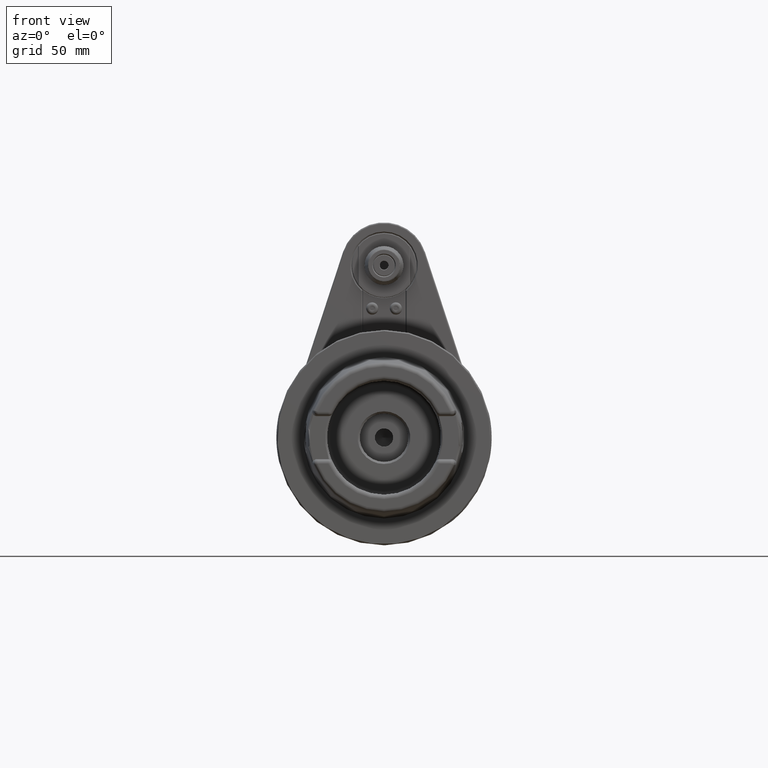
[diagram: clean part render]
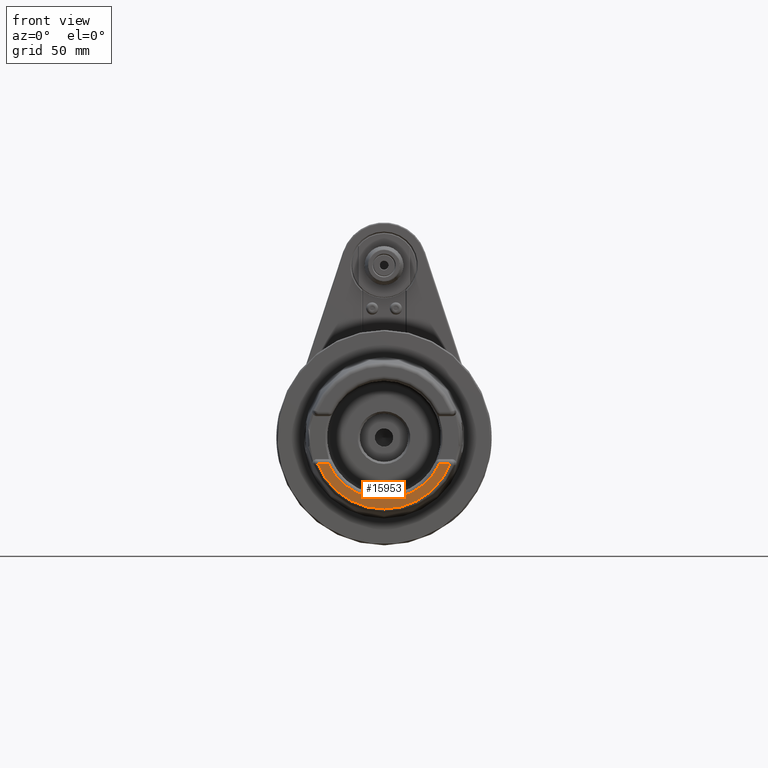
[diagram: same view with one face highlighted and labeled with its STEP entity id]
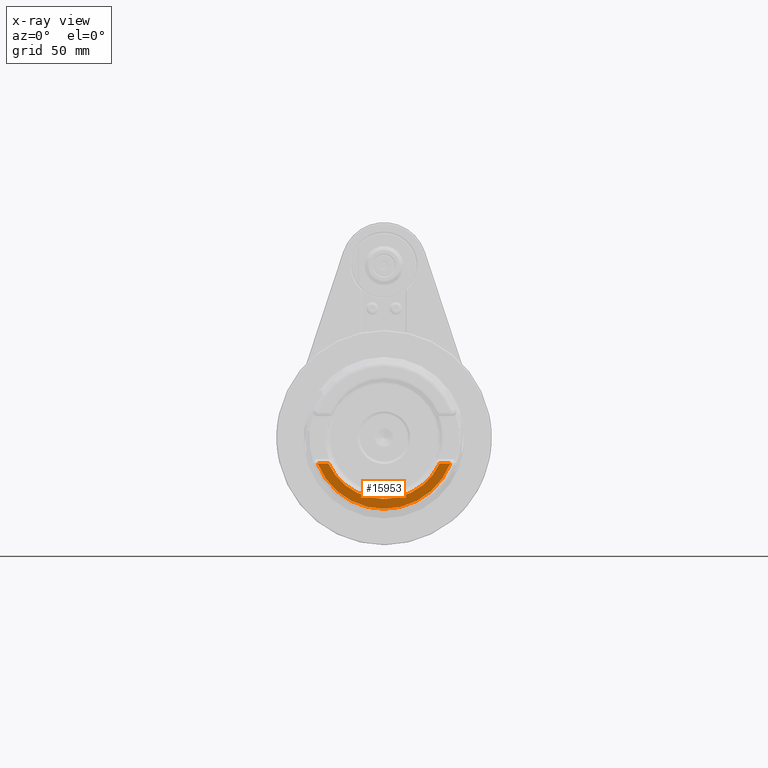
[diagram: x-ray of the same camera — body ghosted, the highlighted face saturated]
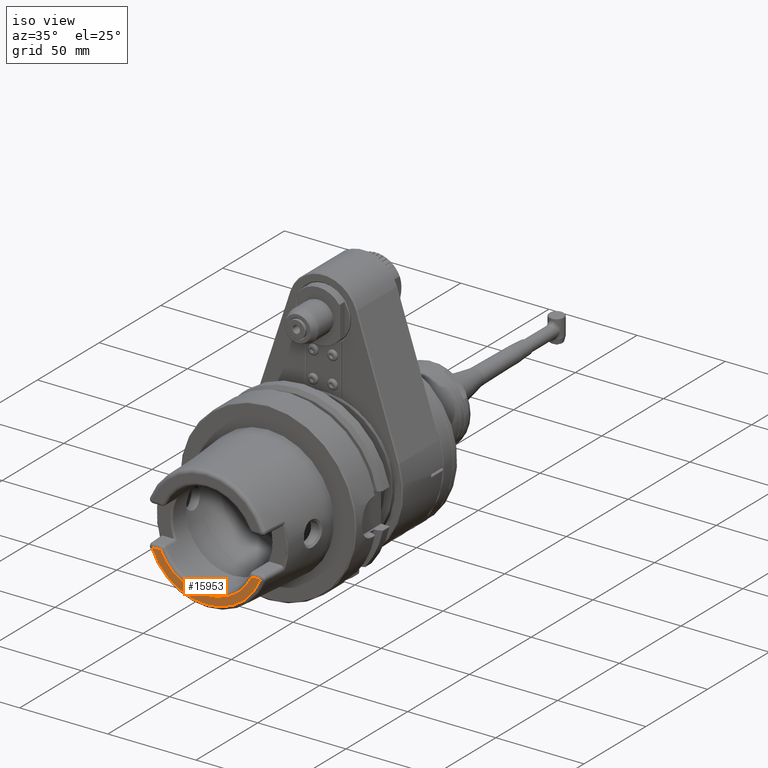
[diagram: same view with one face highlighted and labeled with its STEP entity id]
A machine part, front view. The second image highlights one B-rep face of the part: STEP entity #15953.
The next image is the same camera in x-ray: the body ghosted, the highlighted face saturated — about 0% of this face is hidden behind the body in this view.
A second angle (iso view) of the same face is appended — the face is thin or edge-on in the first view.
In plain terms, the highlighted planar face has unit normal (0, 1, 0).
Its self-contained STEP definition (entity closure, byte-faithful):
#1699=LINE('',#38860,#2833);
#1701=LINE('',#38865,#2835);
#2833=VECTOR('',#22212,5.002212878731);
#2835=VECTOR('',#22218,5.002212878731);
#4060=FACE_OUTER_BOUND('',#5086,.T.);
#5086=EDGE_LOOP('',(#14323,#14324,#14325,#14326));
#6006=CIRCLE('',#17716,28.5);
#6009=CIRCLE('',#17722,33.10355564264);
#7502=VERTEX_POINT('',#38851);
#7503=VERTEX_POINT('',#38853);
#7504=VERTEX_POINT('',#38859);
#7505=VERTEX_POINT('',#38864);
#9797=EDGE_CURVE('',#7502,#7503,#6006,.T.);
#9799=EDGE_CURVE('',#7504,#7502,#1699,.T.);
#9802=EDGE_CURVE('',#7503,#7505,#1701,.T.);
#9803=EDGE_CURVE('',#7505,#7504,#6009,.T.);
#14323=ORIENTED_EDGE('',*,*,#9799,.T.);
#14324=ORIENTED_EDGE('',*,*,#9797,.T.);
#14325=ORIENTED_EDGE('',*,*,#9802,.T.);
#14326=ORIENTED_EDGE('',*,*,#9803,.T.);
#15087=PLANE('',#17721);
#15953=ADVANCED_FACE('',(#4060),#15087,.F.);
#17716=AXIS2_PLACEMENT_3D('',#38855,#22204,#22205);
#17721=AXIS2_PLACEMENT_3D('',#38863,#22216,#22217);
#17722=AXIS2_PLACEMENT_3D('',#38866,#22219,#22220);
#22204=DIRECTION('center_axis',(0.,1.,0.));
#22205=DIRECTION('ref_axis',(0.906873245164238,0.,-0.421403508771918));
#22212=DIRECTION('',(-1.,0.,0.));
#22216=DIRECTION('center_axis',(0.,1.,0.));
#22217=DIRECTION('ref_axis',(0.,0.,1.));
#22218=DIRECTION('',(-1.,0.,0.));
#22219=DIRECTION('center_axis',(0.,-1.,0.));
#22220=DIRECTION('ref_axis',(-0.931866676163851,0.,-0.36280090663522));
#38851=CARTESIAN_POINT('',(25.84588748718,-103.,-12.01));
#38853=CARTESIAN_POINT('',(-25.84588748718,-103.,-12.01));
#38855=CARTESIAN_POINT('Origin',(-1.261386203122E-14,-103.,2.285111048316E-14));
#38859=CARTESIAN_POINT('',(30.84810036591,-103.,-12.01));
#38860=CARTESIAN_POINT('',(30.84810036591,-103.,-12.01));
#38863=CARTESIAN_POINT('Origin',(-1.261386203122E-14,-103.,2.285324009082E-14));
#38864=CARTESIAN_POINT('',(-30.84810036591,-103.,-12.01));
#38865=CARTESIAN_POINT('',(-25.84588748718,-103.,-12.01));
#38866=CARTESIAN_POINT('Origin',(-1.261386203122E-14,-103.,2.285324009082E-14));